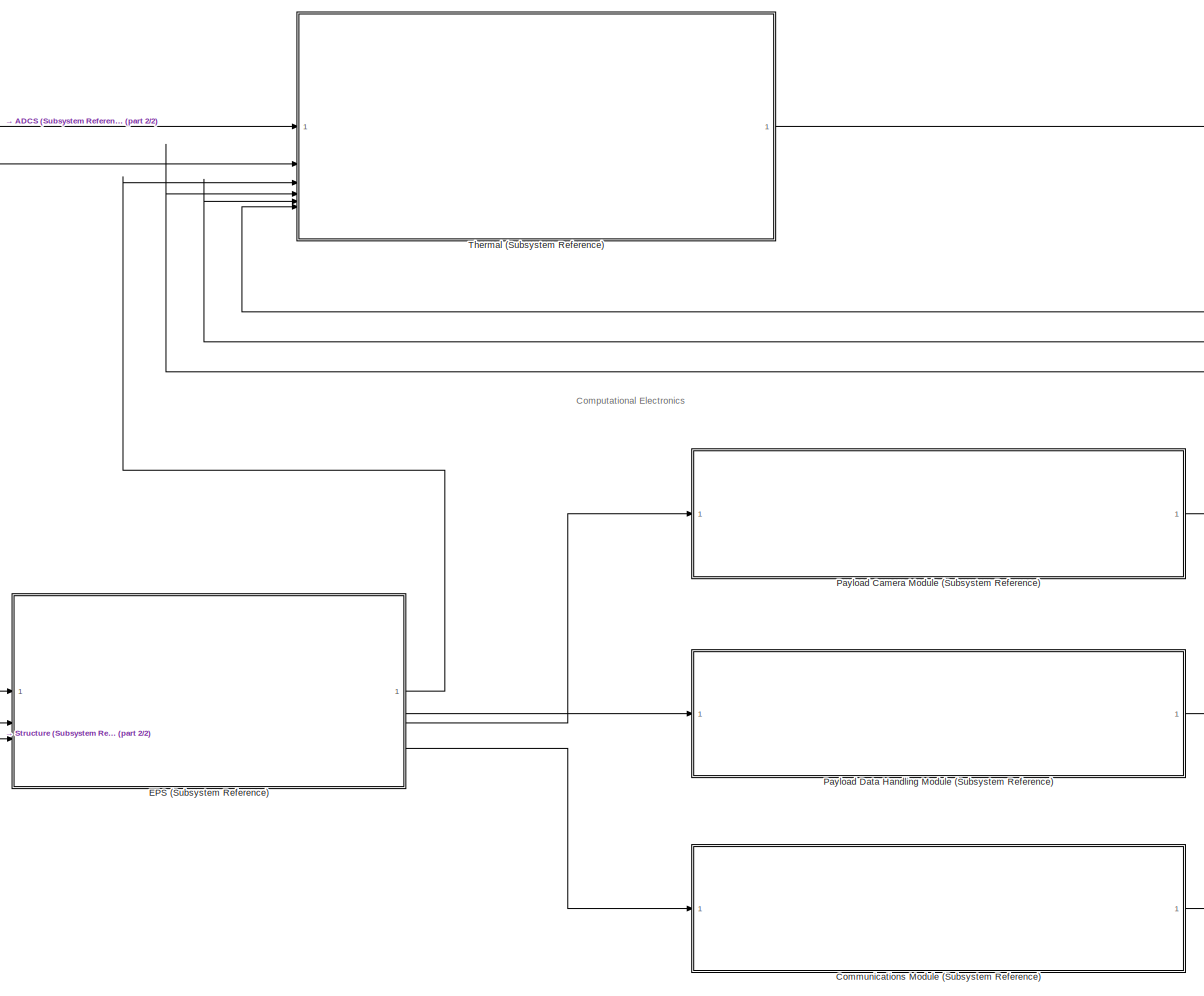
[diagram: root canvas - part 1/2, center side, full height]
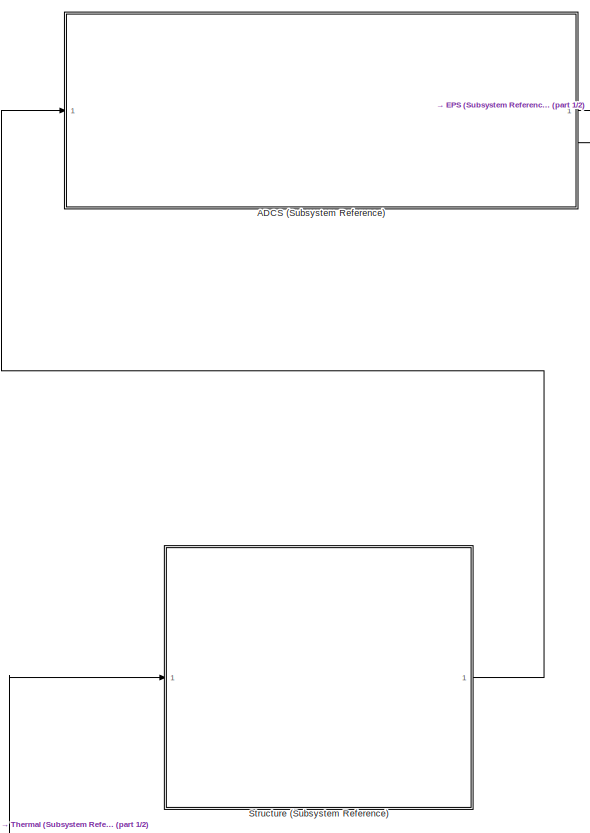
[diagram: root canvas - part 2/2, middle left region]
MODEL slx_947fdf5d2d37
KIND model
CONFIG AbsTol = auto
CONFIG EnableMultiTasking = off
CONFIG FixedStep = auto
CONFIG MaxStep = auto
CONFIG MinStep = auto
CONFIG RelTol = 1e-3
CONFIG SampleTimeConstraint = Unconstrained
CONFIG SolverName = VariableStepAuto
CONFIG StartTime = 0.0
CONFIG StopTime = 10.0
BLOCK [SubSystem] ADCS (Subsystem Reference)
  ReferencedSubsystem = attitude_determination_control_subsystem
BLOCK [SubSystem] Communications Module (Subsystem Reference)
  ReferencedSubsystem = communications_module
BLOCK [SubSystem] EPS (Subsystem Reference)
  ReferencedSubsystem = electrical_power_subsystem
BLOCK [SubSystem] Payload Camera Module (Subsystem Reference)
  ReferencedSubsystem = payload_camera_module
BLOCK [SubSystem] Payload Data Handling Module (Subsystem Reference)
  ReferencedSubsystem = payload_data_handling_module
BLOCK [SubSystem] Structure (Subsystem Reference)
  ReferencedSubsystem = structure
BLOCK [SubSystem] Thermal (Subsystem Reference)
  ReferencedSubsystem = thermal
ANNOTATION (root): Computational Electronics
NET ADCS (Subsystem Reference):1 -> EPS (Subsystem Reference):1, Thermal (Subsystem Reference):1
NET ADCS (Subsystem Reference):2 -> EPS (Subsystem Reference):2, Thermal (Subsystem Reference):2
LINE Communications Module (Subsystem Reference):1 -> Thermal (Subsystem Reference):6
LINE EPS (Subsystem Reference):1 -> Thermal (Subsystem Reference):3
LINE EPS (Subsystem Reference):2 -> Payload Camera Module (Subsystem Reference):1
LINE EPS (Subsystem Reference):3 -> Payload Data Handling Module (Subsystem Reference):1
LINE EPS (Subsystem Reference):4 -> Communications Module (Subsystem Reference):1
LINE Payload Camera Module (Subsystem Reference):1 -> Thermal (Subsystem Reference):4
LINE Payload Data Handling Module (Subsystem Reference):1 -> Thermal (Subsystem Reference):5
LINE Structure (Subsystem Reference):1 -> ADCS (Subsystem Reference):1
NET Thermal (Subsystem Reference):1 -> EPS (Subsystem Reference):3, Structure (Subsystem Reference):1
note: NET lines group one-source signal fan-out (src -> all destinations, sorted); 1:1 wires keep LINE
